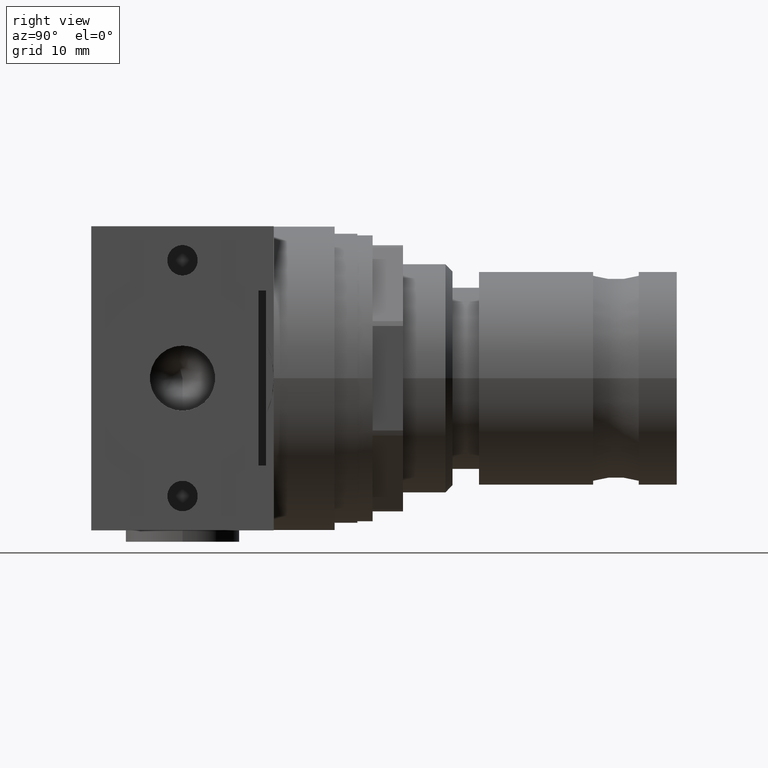
[diagram: clean part render]
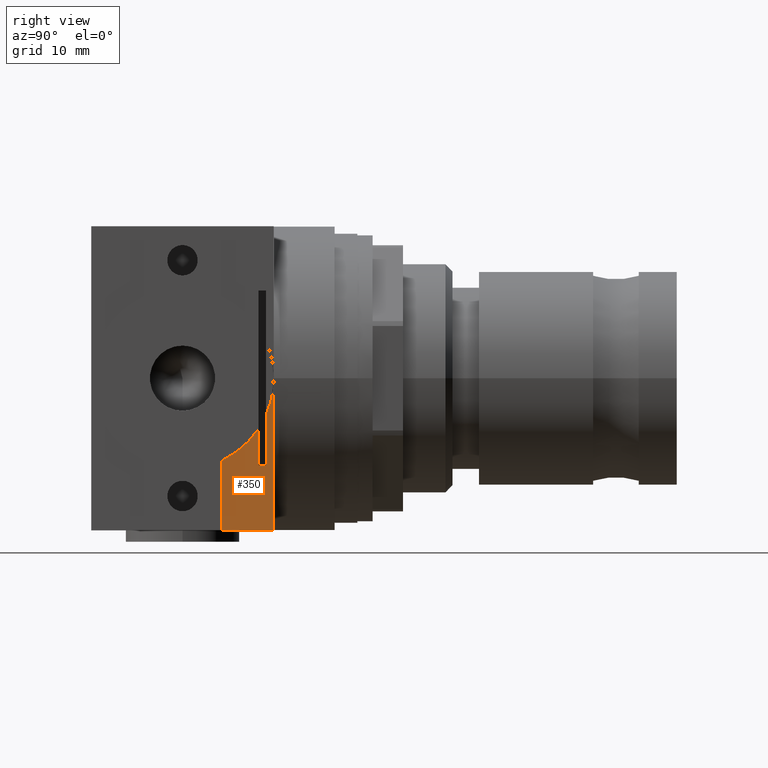
[diagram: same view with one face highlighted and labeled with its STEP entity id]
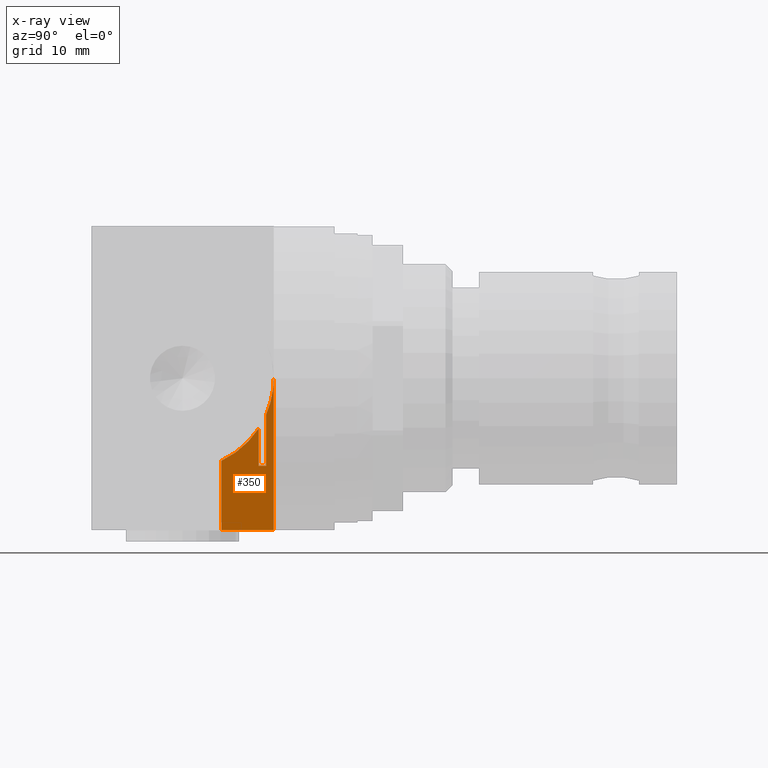
[diagram: x-ray of the same camera — body ghosted, the highlighted face saturated]
A machine part, right view. The second image highlights one B-rep face of the part: STEP entity #350.
The next image is the same camera in x-ray: the body ghosted, the highlighted face saturated — about 0% of this face is hidden behind the body in this view.
In plain terms, the highlighted planar face has unit normal (1, 0, 0).
Its self-contained STEP definition (entity closure, byte-faithful):
#350 = ADVANCED_FACE( '', ( #742 ), #743, .T. );
#742 = FACE_OUTER_BOUND( '', #1187, .T. );
#743 = PLANE( '', #1188 );
#1187 = EDGE_LOOP( '', ( #1934, #1935, #1936, #1937, #1938, #1939, #1940, #1941 ) );
#1188 = AXIS2_PLACEMENT_3D( '', #1942, #1943, #1944 );
#1934 = ORIENTED_EDGE( '', *, *, #2694, .F. );
#1935 = ORIENTED_EDGE( '', *, *, #2548, .T. );
#1936 = ORIENTED_EDGE( '', *, *, #2695, .T. );
#1937 = ORIENTED_EDGE( '', *, *, #2696, .T. );
#1938 = ORIENTED_EDGE( '', *, *, #2697, .T. );
#1939 = ORIENTED_EDGE( '', *, *, #2624, .T. );
#1940 = ORIENTED_EDGE( '', *, *, #2698, .F. );
#1941 = ORIENTED_EDGE( '', *, *, #2507, .F. );
#1942 = CARTESIAN_POINT( '', ( 19.9500000000000, 0.000000000000000, 0.000000000000000 ) );
#1943 = DIRECTION( '', ( 1.00000000000000, 0.000000000000000, 0.000000000000000 ) );
#1944 = DIRECTION( '', ( 0.000000000000000, 0.000000000000000, -1.00000000000000 ) );
#2507 = EDGE_CURVE( '', #2960, #2961, #2962, .T. );
#2548 = EDGE_CURVE( '', #3027, #3028, #3029, .F. );
#2624 = EDGE_CURVE( '', #2909, #3150, #3152, .F. );
#2694 = EDGE_CURVE( '', #3027, #2960, #3249, .T. );
#2695 = EDGE_CURVE( '', #3028, #3250, #3251, .T. );
#2696 = EDGE_CURVE( '', #3250, #3252, #3253, .T. );
#2697 = EDGE_CURVE( '', #3252, #2909, #3254, .T. );
#2698 = EDGE_CURVE( '', #2961, #3150, #3255, .T. );
#2909 = VERTEX_POINT( '', #3513 );
#2960 = VERTEX_POINT( '', #3578 );
#2961 = VERTEX_POINT( '', #3579 );
#2962 = LINE( '', #3580, #3581 );
#3027 = VERTEX_POINT( '', #3669 );
#3028 = VERTEX_POINT( '', #3670 );
#3029 = CIRCLE( '', #3671, 12.0000000000000 );
#3150 = VERTEX_POINT( '', #3818 );
#3152 = CIRCLE( '', #3821, 12.0000000000000 );
#3249 = LINE( '', #3959, #3960 );
#3250 = VERTEX_POINT( '', #3961 );
#3251 = LINE( '', #3962, #3963 );
#3252 = VERTEX_POINT( '', #3964 );
#3253 = LINE( '', #3965, #3966 );
#3254 = LINE( '', #3967, #3968 );
#3255 = LINE( '', #3969, #3970 );
#3513 = CARTESIAN_POINT( '', ( 19.9500000000000, 12.0000000000000, -1.84242419865797E-015 ) );
#3578 = CARTESIAN_POINT( '', ( 19.9500000000000, 10.0000000000000, -11.5000000000000 ) );
#3579 = CARTESIAN_POINT( '', ( 19.9500000000000, 11.0000000000000, -11.5000000000000 ) );
#3580 = CARTESIAN_POINT( '', ( 19.9500000000000, 0.000000000000000, -11.5000000000000 ) );
#3581 = VECTOR( '', #4246, 1000.00000000000 );
#3669 = CARTESIAN_POINT( '', ( 19.9500000000000, 10.0000000000000, -6.63324958071079 ) );
#3670 = CARTESIAN_POINT( '', ( 19.9500000000000, 5.10000000000000, -10.8623201941390 ) );
#3671 = AXIS2_PLACEMENT_3D( '', #4288, #4289, #4290 );
#3818 = CARTESIAN_POINT( '', ( 19.9500000000000, 11.0000000000000, -4.79583152331271 ) );
#3821 = AXIS2_PLACEMENT_3D( '', #4408, #4409, #4410 );
#3959 = CARTESIAN_POINT( '', ( 19.9500000000000, 10.0000000000000, 0.000000000000000 ) );
#3960 = VECTOR( '', #4476, 1000.00000000000 );
#3961 = CARTESIAN_POINT( '', ( 19.9500000000000, 5.10000000000000, -20.0000000000000 ) );
#3962 = CARTESIAN_POINT( '', ( 19.9500000000000, 5.10000000000000, 0.000000000000000 ) );
#3963 = VECTOR( '', #4477, 1000.00000000000 );
#3964 = CARTESIAN_POINT( '', ( 19.9500000000000, 12.0000000000000, -20.0000000000000 ) );
#3965 = CARTESIAN_POINT( '', ( 19.9500000000000, -12.0000000000000, -20.0000000000000 ) );
#3966 = VECTOR( '', #4478, 1000.00000000000 );
#3967 = CARTESIAN_POINT( '', ( 19.9500000000000, 12.0000000000000, -20.0000000000000 ) );
#3968 = VECTOR( '', #4479, 1000.00000000000 );
#3969 = CARTESIAN_POINT( '', ( 19.9500000000000, 11.0000000000000, 0.000000000000000 ) );
#3970 = VECTOR( '', #4480, 1000.00000000000 );
#4246 = DIRECTION( '', ( -0.000000000000000, 1.00000000000000, 0.000000000000000 ) );
#4288 = CARTESIAN_POINT( '', ( 19.9500000000000, -8.67361737988404E-015, -1.73472347597681E-015 ) );
#4289 = DIRECTION( '', ( 1.00000000000000, 0.000000000000000, 0.000000000000000 ) );
#4290 = DIRECTION( '', ( 0.000000000000000, 0.000000000000000, -1.00000000000000 ) );
#4408 = CARTESIAN_POINT( '', ( 19.9500000000000, -8.67361737988404E-015, -1.73472347597681E-015 ) );
#4409 = DIRECTION( '', ( 1.00000000000000, 0.000000000000000, 0.000000000000000 ) );
#4410 = DIRECTION( '', ( 0.000000000000000, 0.000000000000000, -1.00000000000000 ) );
#4476 = DIRECTION( '', ( 0.000000000000000, 0.000000000000000, -1.00000000000000 ) );
#4477 = DIRECTION( '', ( 0.000000000000000, 0.000000000000000, -1.00000000000000 ) );
#4478 = DIRECTION( '', ( 0.000000000000000, 1.00000000000000, 0.000000000000000 ) );
#4479 = DIRECTION( '', ( 0.000000000000000, 0.000000000000000, 1.00000000000000 ) );
#4480 = DIRECTION( '', ( 0.000000000000000, 0.000000000000000, 1.00000000000000 ) );